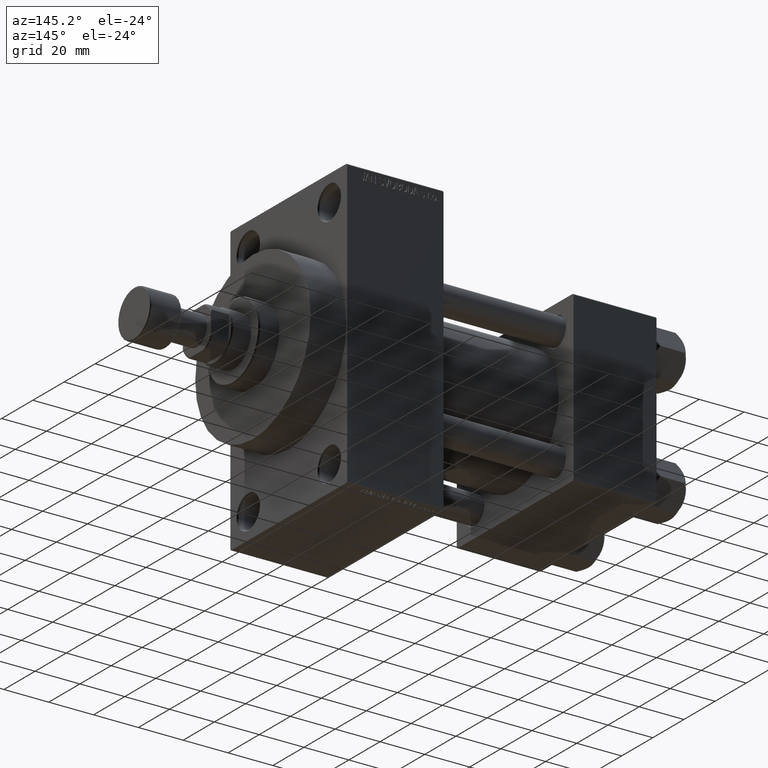
[diagram: clean part render]
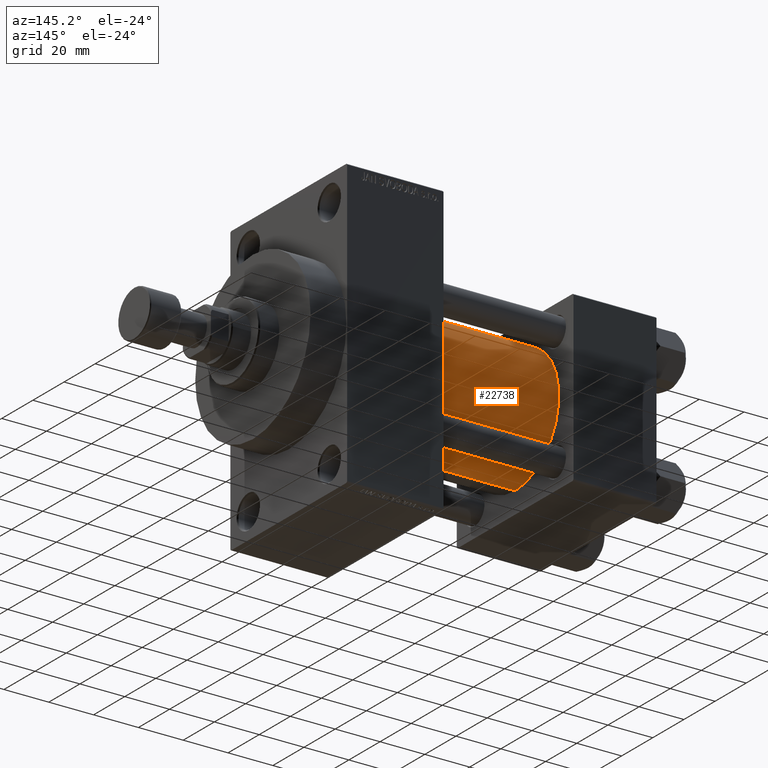
[diagram: same view with one face highlighted and labeled with its STEP entity id]
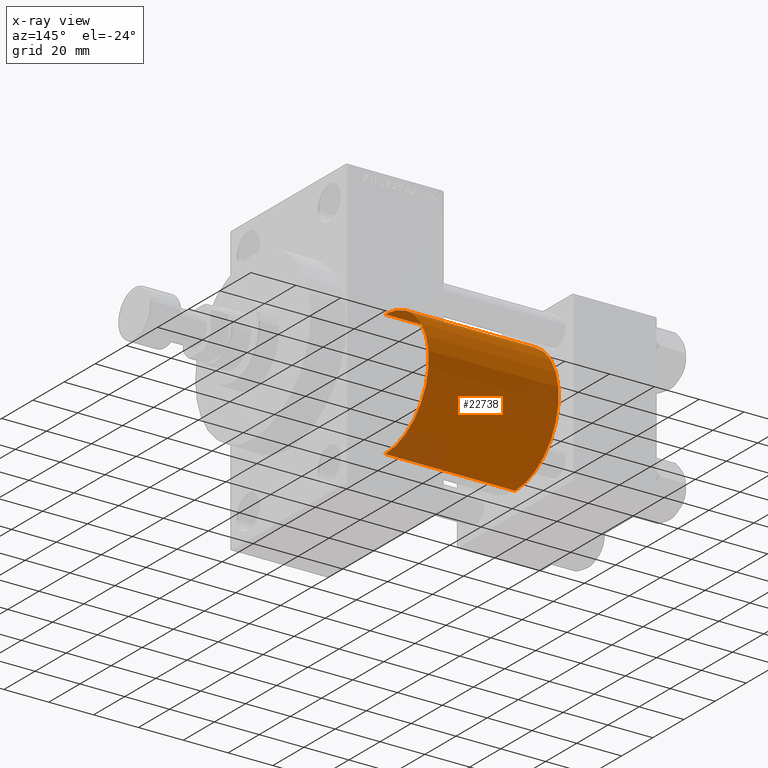
[diagram: x-ray of the same camera — body ghosted, the highlighted face saturated]
A machine part, auxiliary view. The second image highlights one B-rep face of the part: STEP entity #22738.
The next image is the same camera in x-ray: the body ghosted, the highlighted face saturated — about 9% of this face is hidden behind the body in this view.
In plain terms, the highlighted cylindrical surface (partial cylindrical patch) has radius 28 mm, axis along (-1, -0, -0).
Its self-contained STEP definition (entity closure, byte-faithful):
#476 = ORIENTED_EDGE ( 'NONE', *, *, #4563, .F. ) ;
#3087 = DIRECTION ( 'NONE',  ( 0.000000000000000000, 0.000000000000000000, -1.000000000000000000 ) ) ;
#4563 = EDGE_CURVE ( 'NONE', #9051, #42906, #42475, .T. ) ;
#6699 = DIRECTION ( 'NONE',  ( 1.000000000000000000, 0.000000000000000000, 0.000000000000000000 ) ) ;
#7891 = CARTESIAN_POINT ( 'NONE',  ( 37.00000000000000000, -2.602085213965210642E-15, 0.000000000000000000 ) ) ;
#9051 = VERTEX_POINT ( 'NONE', #34493 ) ;
#9623 = CYLINDRICAL_SURFACE ( 'NONE', #10525, 28.00000000000000000 ) ;
#10198 = ORIENTED_EDGE ( 'NONE', *, *, #45107, .T. ) ;
#10330 = DIRECTION ( 'NONE',  ( -1.000000000000000000, -0.000000000000000000, -0.000000000000000000 ) ) ;
#10525 = AXIS2_PLACEMENT_3D ( 'NONE', #46436, #10330, #28141 ) ;
#10596 = VERTEX_POINT ( 'NONE', #46030 ) ;
#11682 = LINE ( 'NONE', #18890, #23353 ) ;
#12496 = CIRCLE ( 'NONE', #40147, 28.00000000000000000 ) ;
#13141 = ORIENTED_EDGE ( 'NONE', *, *, #35056, .F. ) ;
#13283 = CARTESIAN_POINT ( 'NONE',  ( 95.00000000000000000, -2.602085213965210642E-15, 28.00000000000000000 ) ) ;
#15776 = LINE ( 'NONE', #13283, #26167 ) ;
#17541 = FACE_OUTER_BOUND ( 'NONE', #24057, .T. ) ;
#18890 = CARTESIAN_POINT ( 'NONE',  ( 95.00000000000000000, 8.269258236473776482E-16, -28.00000000000000000 ) ) ;
#20174 = AXIS2_PLACEMENT_3D ( 'NONE', #39667, #6699, #3087 ) ;
#22022 = CARTESIAN_POINT ( 'NONE',  ( 95.00000000000000000, -2.602085213965210642E-15, 28.00000000000000000 ) ) ;
#22738 = ADVANCED_FACE ( 'NONE', ( #17541 ), #9623, .T. ) ;
#23353 = VECTOR ( 'NONE', #29249, 1000.000000000000000 ) ;
#24057 = EDGE_LOOP ( 'NONE', ( #476, #10198, #46186, #13141 ) ) ;
#26167 = VECTOR ( 'NONE', #39041, 1000.000000000000000 ) ;
#28141 = DIRECTION ( 'NONE',  ( 0.000000000000000000, 0.000000000000000000, 1.000000000000000000 ) ) ;
#29249 = DIRECTION ( 'NONE',  ( -1.000000000000000000, -0.000000000000000000, -0.000000000000000000 ) ) ;
#30132 = CARTESIAN_POINT ( 'NONE',  ( 37.00000000000000000, 8.269258236473776482E-16, -28.00000000000000000 ) ) ;
#32693 = DIRECTION ( 'NONE',  ( 0.000000000000000000, 0.000000000000000000, 1.000000000000000000 ) ) ;
#33467 = VERTEX_POINT ( 'NONE', #30132 ) ;
#34493 = CARTESIAN_POINT ( 'NONE',  ( 95.00000000000000000, 8.269258236473776482E-16, -28.00000000000000000 ) ) ;
#35056 = EDGE_CURVE ( 'NONE', #42906, #10596, #15776, .T. ) ;
#38626 = EDGE_CURVE ( 'NONE', #33467, #10596, #12496, .T. ) ;
#39041 = DIRECTION ( 'NONE',  ( -1.000000000000000000, -0.000000000000000000, -0.000000000000000000 ) ) ;
#39667 = CARTESIAN_POINT ( 'NONE',  ( 95.00000000000000000, -2.602085213965210642E-15, 0.000000000000000000 ) ) ;
#40147 = AXIS2_PLACEMENT_3D ( 'NONE', #7891, #40860, #32693 ) ;
#40860 = DIRECTION ( 'NONE',  ( 1.000000000000000000, -0.000000000000000000, 0.000000000000000000 ) ) ;
#42475 = CIRCLE ( 'NONE', #20174, 28.00000000000000000 ) ;
#42906 = VERTEX_POINT ( 'NONE', #22022 ) ;
#45107 = EDGE_CURVE ( 'NONE', #9051, #33467, #11682, .T. ) ;
#46030 = CARTESIAN_POINT ( 'NONE',  ( 37.00000000000000000, -2.602085213965210642E-15, 28.00000000000000000 ) ) ;
#46186 = ORIENTED_EDGE ( 'NONE', *, *, #38626, .T. ) ;
#46436 = CARTESIAN_POINT ( 'NONE',  ( 95.00000000000000000, -2.602085213965210642E-15, 0.000000000000000000 ) ) ;